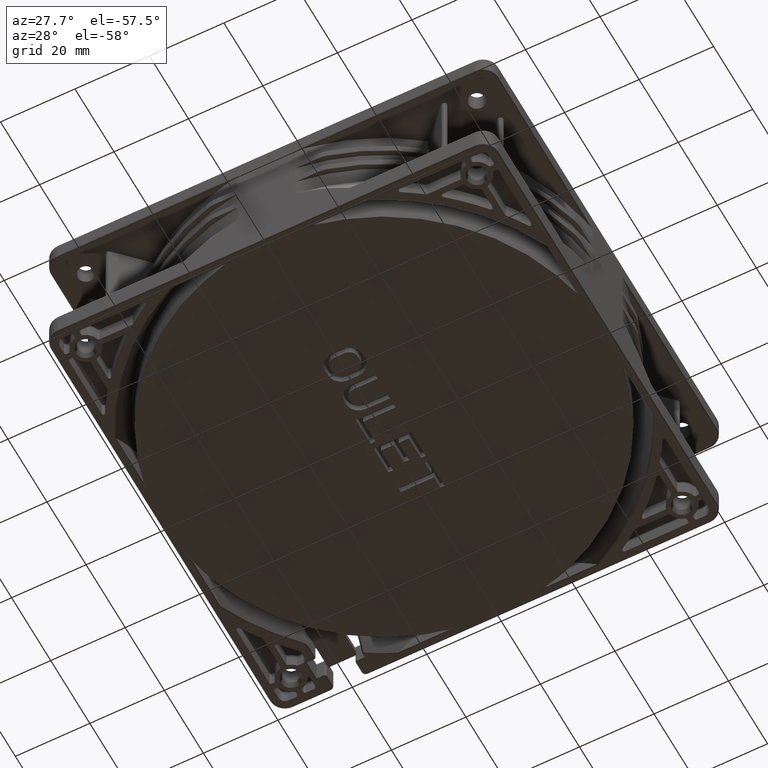
[diagram: clean part render]
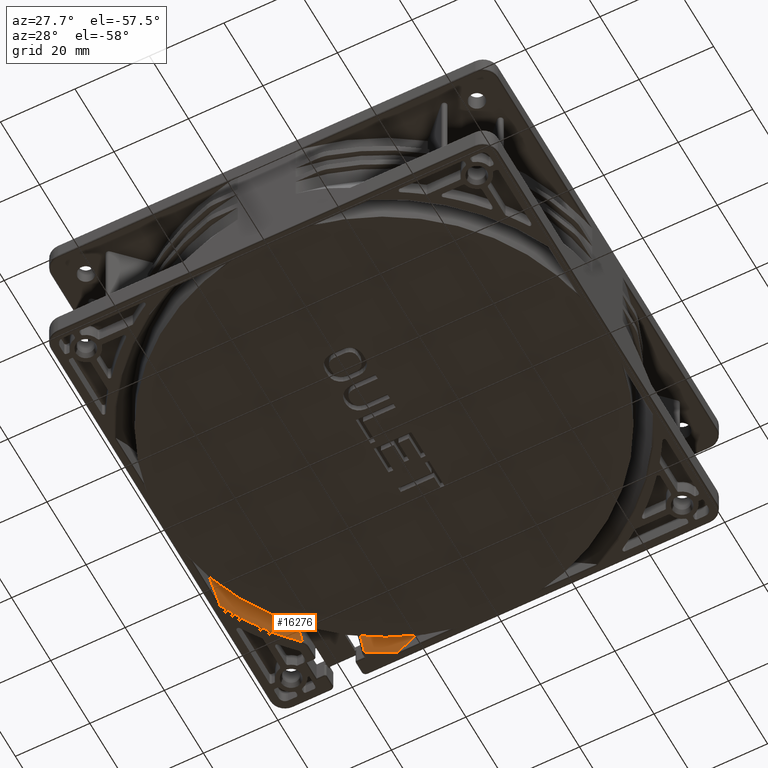
[diagram: same view with one face highlighted and labeled with its STEP entity id]
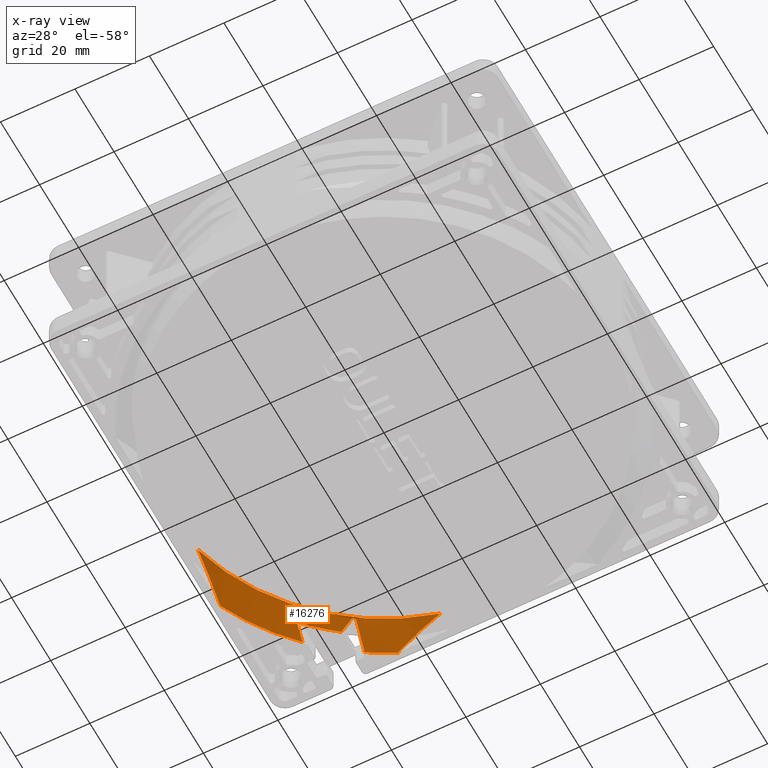
[diagram: x-ray of the same camera — body ghosted, the highlighted face saturated]
A machine part, auxiliary view. The second image highlights one B-rep face of the part: STEP entity #16276.
The next image is the same camera in x-ray: the body ghosted, the highlighted face saturated — about 0% of this face is hidden behind the body in this view.
In plain terms, the highlighted conical surface has half-angle 23.499 deg.
Its self-contained STEP definition (entity closure, byte-faithful):
#1269=CARTESIAN_POINT('',(-5.804146712445E1,2.665472524117E1,
-3.769936841402E1));
#1587=CARTESIAN_POINT('',(-2.653716586267E1,5.8E1,-3.75E1));
#1588=CARTESIAN_POINT('',(-2.535336994497E1,5.8E1,-3.636719036281E1));
#1589=CARTESIAN_POINT('',(-2.295806793900E1,5.8E1,-3.420091318843E1));
#1590=CARTESIAN_POINT('',(-1.927012870128E1,5.8E1,-3.128816419067E1));
#1591=CARTESIAN_POINT('',(-1.668812116254E1,5.8E1,-2.958076496956E1));
#1592=CARTESIAN_POINT('',(-1.536229149577E1,5.8E1,-2.88E1));
#1617=CARTESIAN_POINT('',(-2.653716586267E1,5.8E1,-3.75E1));
#1618=CARTESIAN_POINT('',(-2.656015179325E1,5.8E1,-3.752199592286E1));
#1619=CARTESIAN_POINT('',(-2.659986682022E1,5.800291010312E1,
-3.756619442834E1));
#1620=CARTESIAN_POINT('',(-2.663982378028E1,5.801621374047E1,
-3.763243730833E1));
#1621=CARTESIAN_POINT('',(-2.665261654816E1,5.803182453354E1,
-3.767719004753E1));
#1622=CARTESIAN_POINT('',(-2.665472434603E1,5.804146497188E1,
-3.769936305571E1));
#1624=CARTESIAN_POINT('',(-3.369961176889E1,5.425515880952E1,
-3.769936494206E1));
#1625=CARTESIAN_POINT('',(-3.369889721670E1,5.405489624810E1,
-3.730722741793E1));
#1626=CARTESIAN_POINT('',(-3.369755628662E1,5.365386858727E1,
-3.652320739317E1));
#1627=CARTESIAN_POINT('',(-3.369565887967E1,5.305078671972E1,
-3.534795912197E1));
#1628=CARTESIAN_POINT('',(-3.369375369313E1,5.244618874077E1,
-3.417349573435E1));
#1629=CARTESIAN_POINT('',(-3.369231703266E1,5.204200721648E1,
-3.339108789592E1));
#1630=CARTESIAN_POINT('',(-3.369156539256E1,5.183968264914E1,
-3.300001100817E1));
#1632=CARTESIAN_POINT('',(-3.369156539256E1,5.183968264914E1,
-3.300001100817E1));
#1633=CARTESIAN_POINT('',(-3.369156539256E1,5.166816974130E1,
-3.266924974951E1));
#1634=CARTESIAN_POINT('',(-3.369154695956E1,5.132536028857E1,
-3.200932631031E1));
#1635=CARTESIAN_POINT('',(-3.369155508452E1,5.081218603046E1,
-3.102404608037E1));
#1636=CARTESIAN_POINT('',(-3.369155185095E1,5.047064276137E1,
-3.037033897836E1));
#1637=CARTESIAN_POINT('',(-3.369155185095E1,5.030000261800E1,
-3.004425641520E1));
#1639=CARTESIAN_POINT('',(-3.369155185095E1,5.030000261800E1,
-3.004425641520E1));
#1640=CARTESIAN_POINT('',(-3.369155185095E1,5.026171272408E1,
-2.997108684028E1));
#1641=CARTESIAN_POINT('',(-3.369595826496E1,5.018638205302E1,
-2.983284198456E1));
#1642=CARTESIAN_POINT('',(-3.371441652337E1,5.007842080333E1,
-2.965044899154E1));
#1643=CARTESIAN_POINT('',(-3.374373422832E1,4.997534277962E1,
-2.949156579992E1));
#1644=CARTESIAN_POINT('',(-3.378326941157E1,4.987724910762E1,
-2.935560687893E1));
#1645=CARTESIAN_POINT('',(-3.383266023828E1,4.978425418471E1,
-2.924238243197E1));
#1646=CARTESIAN_POINT('',(-3.389139773788E1,4.969719229087E1,
-2.915287676565E1));
#1647=CARTESIAN_POINT('',(-3.395782248908E1,4.961799835048E1,
-2.908865746636E1));
#1648=CARTESIAN_POINT('',(-3.403060048087E1,4.954733231166E1,
-2.904925933068E1));
#1649=CARTESIAN_POINT('',(-3.410907361674E1,4.948510827172E1,
-2.903366436442E1));
#1650=CARTESIAN_POINT('',(-3.419324763868E1,4.943109356205E1,
-2.904144022287E1));
#1651=CARTESIAN_POINT('',(-3.428234067429E1,4.938569587688E1,
-2.907233004998E1));
#1652=CARTESIAN_POINT('',(-3.437847056537E1,4.934834944706E1,
-2.912803937140E1));
#1653=CARTESIAN_POINT('',(-3.448069997380E1,4.932055565928E1,
-2.921018469992E1));
#1654=CARTESIAN_POINT('',(-3.458568156900E1,4.930374051295E1,
-2.931701139241E1));
#1655=CARTESIAN_POINT('',(-3.465617112913E1,4.930000384416E1,
-2.940320543498E1));
#1656=CARTESIAN_POINT('',(-3.469155130259E1,4.930000384416E1,
-2.945003491727E1));
#1658=CARTESIAN_POINT('',(-3.469155130259E1,4.930000384416E1,
-2.945003491727E1));
#1659=CARTESIAN_POINT('',(-3.498486910953E1,4.930000384416E1,
-2.983827272690E1));
#1660=CARTESIAN_POINT('',(-3.556968455871E1,4.930000307243E1,
-3.061904827922E1));
#1661=CARTESIAN_POINT('',(-3.644228281050E1,4.929999580875E1,
-3.180239638491E1));
#1662=CARTESIAN_POINT('',(-3.702060242076E1,4.930001595030E1,
-3.259954594124E1));
#1663=CARTESIAN_POINT('',(-3.730912617519E1,4.930001595030E1,-3.3E1));
#1665=CARTESIAN_POINT('',(-4.516074928535E1,4.222553961412E1,
-3.299993453080E1));
#1666=CARTESIAN_POINT('',(-4.518964645376E1,4.218705668425E1,
-3.299932769245E1));
#1667=CARTESIAN_POINT('',(-4.524663663290E1,4.212068415931E1,
-3.299772964524E1));
#1668=CARTESIAN_POINT('',(-4.533861542632E1,4.202882145171E1,
-3.299573004964E1));
#1669=CARTESIAN_POINT('',(-4.539479670225E1,4.197132607591E1,
-3.299652431112E1));
#1670=CARTESIAN_POINT('',(-4.542229508825E1,4.194221942654E1,
-3.299757508262E1));
#1672=CARTESIAN_POINT('',(-4.542229508825E1,4.194221942654E1,
-3.299757508262E1));
#1673=CARTESIAN_POINT('',(-4.542328612566E1,4.197261685672E1,
-3.304667958215E1));
#1674=CARTESIAN_POINT('',(-4.542520091655E1,4.203344474053E1,
-3.314487894447E1));
#1675=CARTESIAN_POINT('',(-4.542888770161E1,4.215509780283E1,
-3.334124258494E1));
#1676=CARTESIAN_POINT('',(-4.543481499337E1,4.236814325869E1,
-3.368478447432E1));
#1677=CARTESIAN_POINT('',(-4.544185999752E1,4.267284802208E1,
-3.417529730465E1));
#1678=CARTESIAN_POINT('',(-4.544801384454E1,4.303908436369E1,
-3.476351589591E1));
#1679=CARTESIAN_POINT('',(-4.545187382238E1,4.340590298087E1,
-3.535135967681E1));
#1680=CARTESIAN_POINT('',(-4.545343808831E1,4.377330420457E1,
-3.593885045367E1));
#1681=CARTESIAN_POINT('',(-4.545282882169E1,4.407995573143E1,
-3.642815012786E1));
#1682=CARTESIAN_POINT('',(-4.545119360729E1,4.432556657485E1,
-3.681943523603E1));
#1683=CARTESIAN_POINT('',(-4.544969329756E1,4.447919386503E1,
-3.706392620460E1));
#1684=CARTESIAN_POINT('',(-4.544820617338E1,4.460216790326E1,
-3.725948318092E1));
#1685=CARTESIAN_POINT('',(-4.544694709919E1,4.469443453528E1,
-3.740613291713E1));
#1686=CARTESIAN_POINT('',(-4.544577908148E1,4.477135338010E1,
-3.752832780540E1));
#1687=CARTESIAN_POINT('',(-4.544489715577E1,4.482521246436E1,
-3.761385450211E1));
#1688=CARTESIAN_POINT('',(-4.544437766267E1,4.485599334088E1,
-3.766272833902E1));
#1689=CARTESIAN_POINT('',(-4.544410743084E1,4.487138562904E1,
-3.768715774336E1));
#1690=CARTESIAN_POINT('',(-4.544397263060E1,4.487908197350E1,
-3.769937496071E1));
#1692=CARTESIAN_POINT('',(-5.804146712445E1,2.665472524117E1,
-3.769936841402E1));
#1693=CARTESIAN_POINT('',(-5.803185340852E1,2.665262328585E1,
-3.767725686739E1));
#1694=CARTESIAN_POINT('',(-5.801625427008E1,2.663988508259E1,
-3.763258006662E1));
#1695=CARTESIAN_POINT('',(-5.800292215041E1,2.659996212735E1,
-3.756631129749E1));
#1696=CARTESIAN_POINT('',(-5.8E1,2.656019842588E1,-3.752204054701E1));
#1697=CARTESIAN_POINT('',(-5.8E1,2.653716586267E1,-3.75E1));
#1699=CARTESIAN_POINT('',(-5.8E1,2.653716586267E1,-3.75E1));
#1700=CARTESIAN_POINT('',(-5.8E1,2.530041712274E1,-3.631651822714E1));
#1701=CARTESIAN_POINT('',(-5.8E1,2.282890979804E1,-3.408869540561E1));
#1702=CARTESIAN_POINT('',(-5.8E1,1.912712075871E1,-3.118732706661E1));
#1703=CARTESIAN_POINT('',(-5.8E1,1.662363855679E1,-2.954279194710E1));
#1704=CARTESIAN_POINT('',(-5.8E1,1.536229149577E1,-2.88E1));
#1711=CARTESIAN_POINT('',(0.E0,0.E0,-2.88E1));
#1712=DIRECTION('',(0.E0,0.E0,1.E0));
#1713=DIRECTION('',(-2.560381915962E-1,9.666666666665E-1,0.E0));
#1714=AXIS2_PLACEMENT_3D('',#1711,#1712,#1713);
#1716=CARTESIAN_POINT('',(-1.943334382662E-12,3.581135388850E-12,
-3.769936305550E1));
#1717=DIRECTION('',(1.666304960314E-12,-2.883534824940E-12,-1.E0));
#1718=DIRECTION('',(-5.276336489284E-1,8.494720316282E-1,-3.328696744166E-12));
#1719=AXIS2_PLACEMENT_3D('',#1716,#1717,#1718);
#1721=CARTESIAN_POINT('',(-2.665472434603E1,5.804146497188E1,
-3.769936305571E1));
#2073=CARTESIAN_POINT('',(-4.544397263060E1,4.487908197350E1,
-3.769937496071E1));
#2092=CARTESIAN_POINT('',(-4.356615536608E-13,3.023084144085E-13,
-3.769937109304E1));
#2093=DIRECTION('',(1.520139485125E-12,-1.005630736313E-12,-1.E0));
#2094=DIRECTION('',(-9.087538970025E-1,4.173324270685E-1,-1.801129552466E-12));
#2095=AXIS2_PLACEMENT_3D('',#2092,#2093,#2094);
#2158=CARTESIAN_POINT('',(0.E0,0.E0,-3.3E1));
#2159=DIRECTION('',(0.E0,0.E0,-1.E0));
#2160=DIRECTION('',(-7.304467698370E-1,6.829696306825E-1,0.E0));
#2161=AXIS2_PLACEMENT_3D('',#2158,#2159,#2160);
#13067=VERTEX_POINT('',#2073);
#13068=VERTEX_POINT('',#1269);
#13071=VERTEX_POINT('',#1697);
#13081=VERTEX_POINT('',#1721);
#13082=VERTEX_POINT('',#1617);
#13084=CARTESIAN_POINT('',(-3.369958563232E1,5.425517407819E1,
-3.769936305571E1));
#13085=VERTEX_POINT('',#13084);
#13086=CARTESIAN_POINT('',(-1.536229149577E1,5.799999999999E1,-2.88E1));
#13087=CARTESIAN_POINT('',(-5.799999999999E1,1.536229149577E1,-2.88E1));
#13088=VERTEX_POINT('',#13086);
#13089=VERTEX_POINT('',#13087);
#13090=VERTEX_POINT('',#1630);
#13091=VERTEX_POINT('',#1637);
#13092=VERTEX_POINT('',#1656);
#13093=VERTEX_POINT('',#1663);
#13094=CARTESIAN_POINT('',(-4.516066550906E1,4.222533977524E1,-3.3E1));
#13095=VERTEX_POINT('',#13094);
#13096=VERTEX_POINT('',#1670);
#16245=CARTESIAN_POINT('',(0.E0,0.E0,-3.324968554660E1));
#16246=DIRECTION('',(0.E0,0.E0,-1.E0));
#16247=DIRECTION('',(-1.E0,0.E0,0.E0));
#16248=AXIS2_PLACEMENT_3D('',#16245,#16246,#16247);
#16249=CONICAL_SURFACE('',#16248,6.193464588982E1,2.349856567595E1);
#16251=ORIENTED_EDGE('',*,*,#16250,.F.);
#16252=ORIENTED_EDGE('',*,*,#16224,.F.);
#16253=ORIENTED_EDGE('',*,*,#15806,.T.);
#16255=ORIENTED_EDGE('',*,*,#16254,.F.);
#16257=ORIENTED_EDGE('',*,*,#16256,.T.);
#16259=ORIENTED_EDGE('',*,*,#16258,.T.);
#16261=ORIENTED_EDGE('',*,*,#16260,.T.);
#16263=ORIENTED_EDGE('',*,*,#16262,.T.);
#16265=ORIENTED_EDGE('',*,*,#16264,.F.);
#16267=ORIENTED_EDGE('',*,*,#16266,.T.);
#16269=ORIENTED_EDGE('',*,*,#16268,.T.);
#16271=ORIENTED_EDGE('',*,*,#16270,.F.);
#16272=ORIENTED_EDGE('',*,*,#15892,.T.);
#16273=ORIENTED_EDGE('',*,*,#15940,.T.);
#16274=EDGE_LOOP('',(#16251,#16252,#16253,#16255,#16257,#16259,#16261,#16263,
#16265,#16267,#16269,#16271,#16272,#16273));
#16275=FACE_OUTER_BOUND('',#16274,.F.);
#16276=ADVANCED_FACE('',(#16275),#16249,.F.);
#1593=B_SPLINE_CURVE_WITH_KNOTS('',3,(#1587,#1588,#1589,#1590,#1591,#1592),
.UNSPECIFIED.,.F.,.F.,(4,1,1,4),(0.E0,3.333333333333E-1,6.666666666667E-1,1.E0),
.UNSPECIFIED.);
#1623=B_SPLINE_CURVE_WITH_KNOTS('',3,(#1617,#1618,#1619,#1620,#1621,#1622),
.UNSPECIFIED.,.F.,.F.,(4,1,1,4),(0.E0,3.333333333333E-1,6.666666666667E-1,1.E0),
.UNSPECIFIED.);
#1631=B_SPLINE_CURVE_WITH_KNOTS('',3,(#1624,#1625,#1626,#1627,#1628,#1629,
#1630),.UNSPECIFIED.,.F.,.F.,(4,1,1,1,4),(0.E0,2.500006094522E-1,
5.000001657983E-1,7.499997221444E-1,1.E0),.UNSPECIFIED.);
#1638=B_SPLINE_CURVE_WITH_KNOTS('',3,(#1632,#1633,#1634,#1635,#1636,#1637),
.UNSPECIFIED.,.F.,.F.,(4,1,1,4),(0.E0,3.333333333333E-1,6.666666666667E-1,1.E0),
.UNSPECIFIED.);
#1657=B_SPLINE_CURVE_WITH_KNOTS('',3,(#1639,#1640,#1641,#1642,#1643,#1644,#1645,
#1646,#1647,#1648,#1649,#1650,#1651,#1652,#1653,#1654,#1655,#1656),
.UNSPECIFIED.,.F.,.F.,(4,1,1,1,1,1,1,1,1,1,1,1,1,1,1,4),(0.E0,6.666666666667E-2,
1.333333333333E-1,2.E-1,2.666666666667E-1,3.333333333333E-1,4.E-1,
4.666666666667E-1,5.333333333333E-1,6.E-1,6.666666666667E-1,7.333333333333E-1,
8.E-1,8.666666666667E-1,9.333333333333E-1,1.E0),.UNSPECIFIED.);
#1664=B_SPLINE_CURVE_WITH_KNOTS('',3,(#1658,#1659,#1660,#1661,#1662,#1663),
.UNSPECIFIED.,.F.,.F.,(4,1,1,4),(0.E0,3.333333333333E-1,6.666666666667E-1,1.E0),
.UNSPECIFIED.);
#1671=B_SPLINE_CURVE_WITH_KNOTS('',3,(#1665,#1666,#1667,#1668,#1669,#1670),
.UNSPECIFIED.,.F.,.F.,(4,1,1,4),(0.E0,3.777692315970E-1,6.888799922093E-1,1.E0),
.UNSPECIFIED.);
#1691=B_SPLINE_CURVE_WITH_KNOTS('',3,(#1672,#1673,#1674,#1675,#1676,#1677,#1678,
#1679,#1680,#1681,#1682,#1683,#1684,#1685,#1686,#1687,#1688,#1689,#1690),
.UNSPECIFIED.,.F.,.F.,(4,1,1,1,1,1,1,1,1,1,1,1,1,1,1,1,4),(0.E0,
3.125000148555E-2,6.250000299423E-2,1.250000060116E-1,2.500000120463E-1,
3.750000180811E-1,5.000000241158E-1,6.250000301505E-1,7.500000361852E-1,
8.125000392026E-1,8.750000422200E-1,9.062500437286E-1,9.375000452373E-1,
9.687500467460E-1,9.843750475003E-1,9.921875478775E-1,1.E0),.UNSPECIFIED.);
#1698=B_SPLINE_CURVE_WITH_KNOTS('',3,(#1692,#1693,#1694,#1695,#1696,#1697),
.UNSPECIFIED.,.F.,.F.,(4,1,1,4),(0.E0,3.333333333333E-1,6.666666666667E-1,1.E0),
.UNSPECIFIED.);
#1705=B_SPLINE_CURVE_WITH_KNOTS('',3,(#1699,#1700,#1701,#1702,#1703,#1704),
.UNSPECIFIED.,.F.,.F.,(4,1,1,4),(0.E0,3.333333333333E-1,6.666666666667E-1,1.E0),
.UNSPECIFIED.);
#1715=CIRCLE('',#1714,6.E1);
#1720=CIRCLE('',#1719,6.386928828509E1);
#2096=CIRCLE('',#2095,6.386929177972E1);
#2162=CIRCLE('',#2161,6.182608695652E1);
#15806=EDGE_CURVE('',#13082,#13081,#1623,.T.);
#15892=EDGE_CURVE('',#13068,#13071,#1698,.T.);
#15940=EDGE_CURVE('',#13071,#13089,#1705,.T.);
#16224=EDGE_CURVE('',#13082,#13088,#1593,.T.);
#16250=EDGE_CURVE('',#13088,#13089,#1715,.T.);
#16254=EDGE_CURVE('',#13085,#13081,#1720,.T.);
#16256=EDGE_CURVE('',#13085,#13090,#1631,.T.);
#16258=EDGE_CURVE('',#13090,#13091,#1638,.T.);
#16260=EDGE_CURVE('',#13091,#13092,#1657,.T.);
#16262=EDGE_CURVE('',#13092,#13093,#1664,.T.);
#16264=EDGE_CURVE('',#13095,#13093,#2162,.T.);
#16266=EDGE_CURVE('',#13095,#13096,#1671,.T.);
#16268=EDGE_CURVE('',#13096,#13067,#1691,.T.);
#16270=EDGE_CURVE('',#13068,#13067,#2096,.T.);